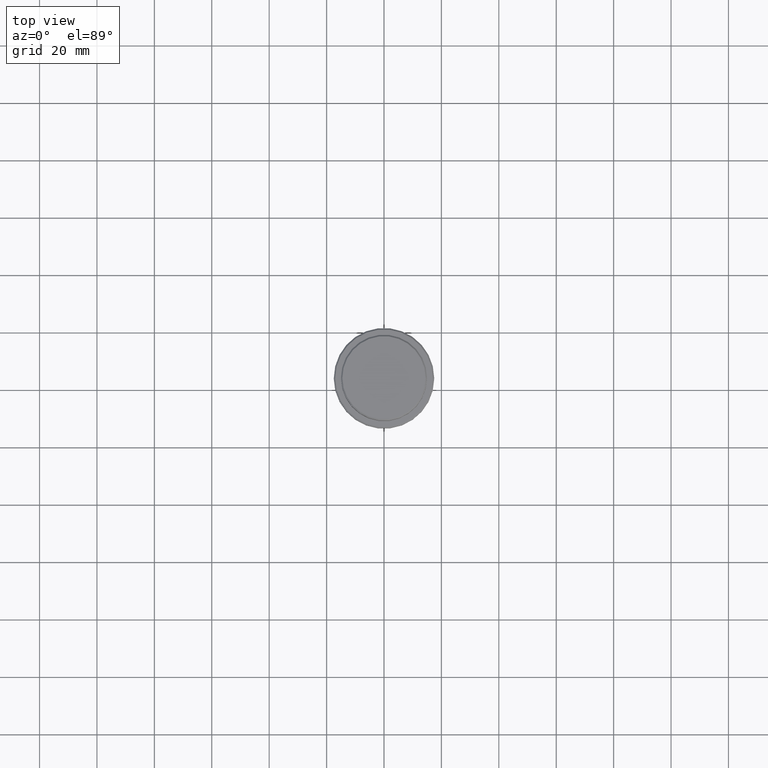
[diagram: clean part render]
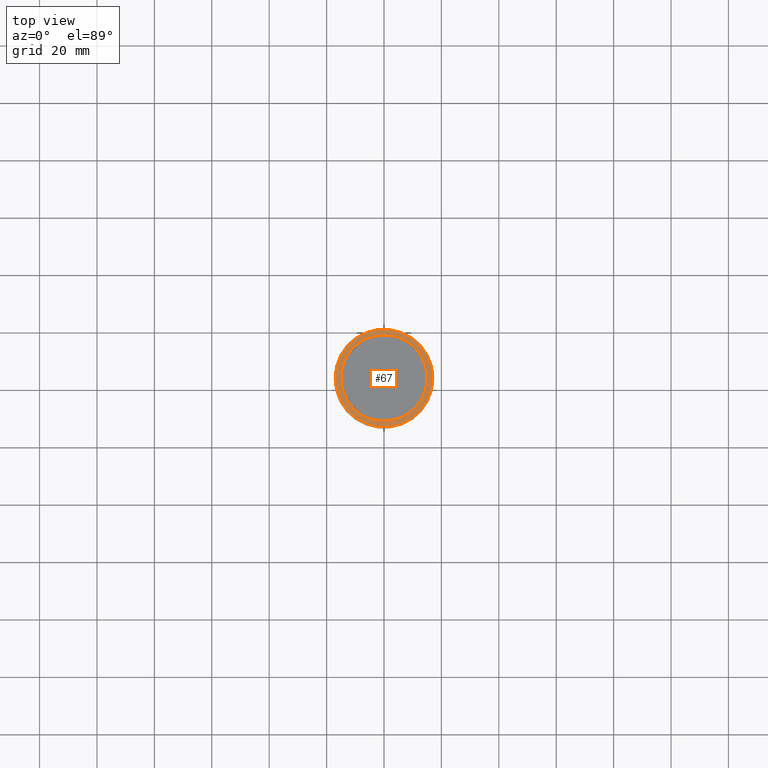
[diagram: same view with one face highlighted and labeled with its STEP entity id]
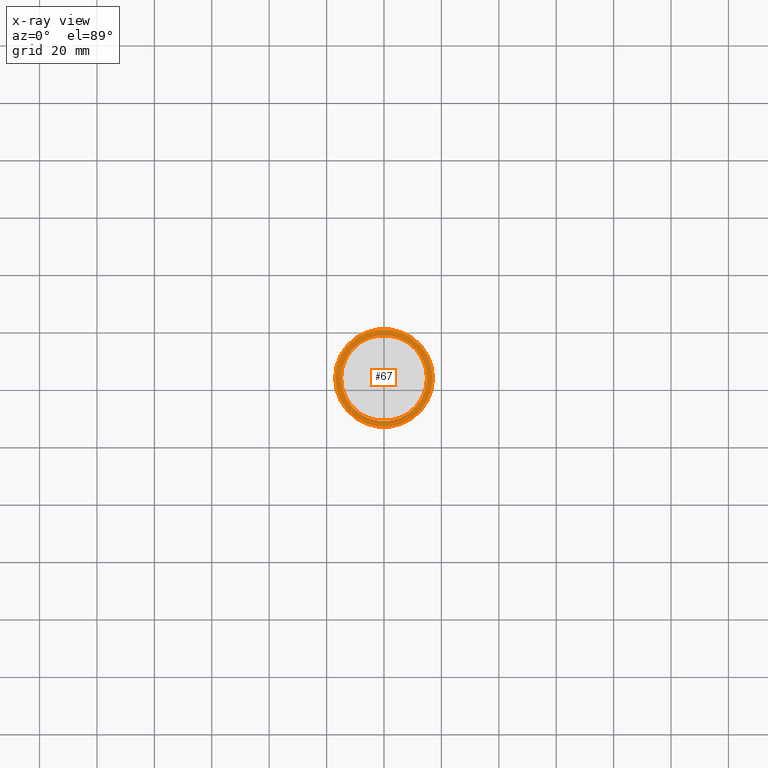
[diagram: x-ray of the same camera — body ghosted, the highlighted face saturated]
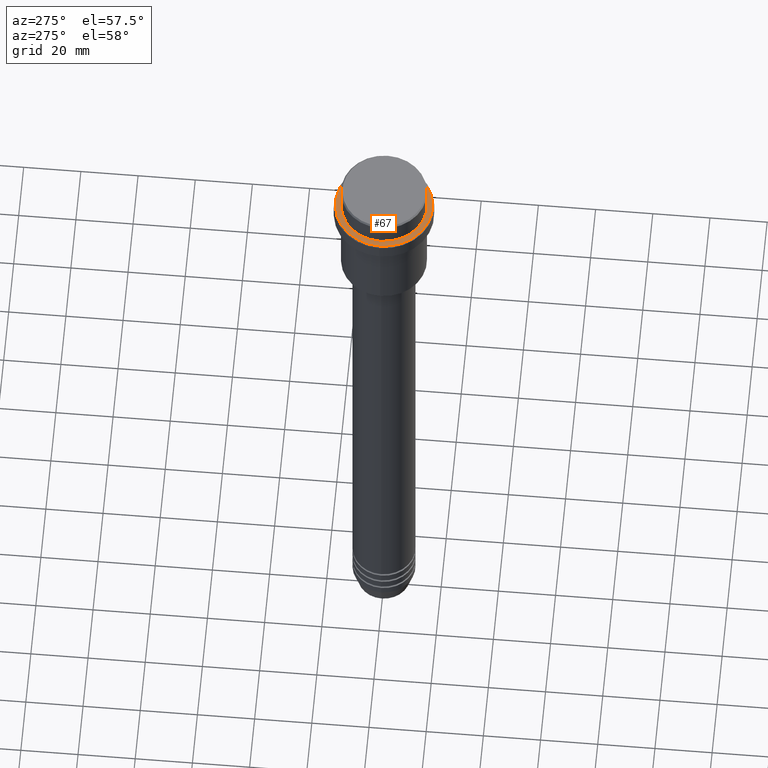
[diagram: same view with one face highlighted and labeled with its STEP entity id]
A machine part, top view. The second image highlights one B-rep face of the part: STEP entity #67.
The next image is the same camera in x-ray: the body ghosted, the highlighted face saturated — about 0% of this face is hidden behind the body in this view.
A second angle (auxiliary view) of the same face is appended — the face is thin or edge-on in the first view.
In plain terms, the highlighted planar face has unit normal (0, -0, 1).
Its self-contained STEP definition (entity closure, byte-faithful):
#38 = CIRCLE ( 'NONE', #1136, 17.00000000000001421 ) ;
#59 = DIRECTION ( 'NONE',  ( 1.000000000000000000, 0.000000000000000000, 0.000000000000000000 ) ) ;
#67 = ADVANCED_FACE ( 'NONE', ( #1140, #160 ), #401, .T. ) ;
#125 = EDGE_LOOP ( 'NONE', ( #1236, #887 ) ) ;
#134 = CARTESIAN_POINT ( 'NONE',  ( -17.00000000000001421, 0.000000000000000000, -9.000000000000000000 ) ) ;
#160 = FACE_BOUND ( 'NONE', #125, .T. ) ;
#328 = CARTESIAN_POINT ( 'NONE',  ( 0.000000000000000000, 0.000000000000000000, -9.000000000000000000 ) ) ;
#339 = DIRECTION ( 'NONE',  ( 1.000000000000000000, 0.000000000000000000, 0.000000000000000000 ) ) ;
#349 = EDGE_LOOP ( 'NONE', ( #1370, #444 ) ) ;
#359 = CARTESIAN_POINT ( 'NONE',  ( 14.99999999999999289, 0.000000000000000000, -9.000000000000000000 ) ) ;
#401 = PLANE ( 'NONE',  #1111 ) ;
#415 = EDGE_CURVE ( 'NONE', #1127, #922, #901, .T. ) ;
#417 = CARTESIAN_POINT ( 'NONE',  ( 17.00000000000001421, 2.112515728529185250E-15, -9.000000000000000000 ) ) ;
#434 = DIRECTION ( 'NONE',  ( -0.000000000000000000, -0.000000000000000000, 1.000000000000000000 ) ) ;
#444 = ORIENTED_EDGE ( 'NONE', *, *, #998, .T. ) ;
#478 = DIRECTION ( 'NONE',  ( 1.000000000000000000, 0.000000000000000000, 0.000000000000000000 ) ) ;
#495 = CARTESIAN_POINT ( 'NONE',  ( -14.99999999999999289, 1.836970198721028800E-15, -9.000000000000000000 ) ) ;
#541 = CARTESIAN_POINT ( 'NONE',  ( 0.000000000000000000, 0.000000000000000000, -9.000000000000000000 ) ) ;
#552 = VERTEX_POINT ( 'NONE', #417 ) ;
#570 = AXIS2_PLACEMENT_3D ( 'NONE', #328, #1185, #339 ) ;
#621 = DIRECTION ( 'NONE',  ( 0.000000000000000000, -0.000000000000000000, 1.000000000000000000 ) ) ;
#664 = AXIS2_PLACEMENT_3D ( 'NONE', #1279, #434, #1310 ) ;
#682 = VERTEX_POINT ( 'NONE', #134 ) ;
#782 = CIRCLE ( 'NONE', #570, 14.99999999999999289 ) ;
#873 = AXIS2_PLACEMENT_3D ( 'NONE', #1217, #1040, #59 ) ;
#887 = ORIENTED_EDGE ( 'NONE', *, *, #1018, .T. ) ;
#901 = CIRCLE ( 'NONE', #873, 14.99999999999999289 ) ;
#922 = VERTEX_POINT ( 'NONE', #495 ) ;
#988 = DIRECTION ( 'NONE',  ( -0.000000000000000000, -0.000000000000000000, 1.000000000000000000 ) ) ;
#998 = EDGE_CURVE ( 'NONE', #552, #682, #1179, .T. ) ;
#1018 = EDGE_CURVE ( 'NONE', #922, #1127, #782, .T. ) ;
#1040 = DIRECTION ( 'NONE',  ( 0.000000000000000000, 0.000000000000000000, -1.000000000000000000 ) ) ;
#1042 = CARTESIAN_POINT ( 'NONE',  ( 0.000000000000000000, 14.49999999999999467, -9.000000000000000000 ) ) ;
#1082 = EDGE_CURVE ( 'NONE', #682, #552, #38, .T. ) ;
#1111 = AXIS2_PLACEMENT_3D ( 'NONE', #1042, #621, #478 ) ;
#1127 = VERTEX_POINT ( 'NONE', #359 ) ;
#1136 = AXIS2_PLACEMENT_3D ( 'NONE', #541, #988, #1411 ) ;
#1140 = FACE_OUTER_BOUND ( 'NONE', #349, .T. ) ;
#1179 = CIRCLE ( 'NONE', #664, 17.00000000000001421 ) ;
#1185 = DIRECTION ( 'NONE',  ( 0.000000000000000000, 0.000000000000000000, -1.000000000000000000 ) ) ;
#1217 = CARTESIAN_POINT ( 'NONE',  ( 0.000000000000000000, 0.000000000000000000, -9.000000000000000000 ) ) ;
#1236 = ORIENTED_EDGE ( 'NONE', *, *, #415, .T. ) ;
#1279 = CARTESIAN_POINT ( 'NONE',  ( 0.000000000000000000, 0.000000000000000000, -9.000000000000000000 ) ) ;
#1310 = DIRECTION ( 'NONE',  ( 1.000000000000000000, 0.000000000000000000, 0.000000000000000000 ) ) ;
#1370 = ORIENTED_EDGE ( 'NONE', *, *, #1082, .T. ) ;
#1411 = DIRECTION ( 'NONE',  ( 1.000000000000000000, 0.000000000000000000, 0.000000000000000000 ) ) ;